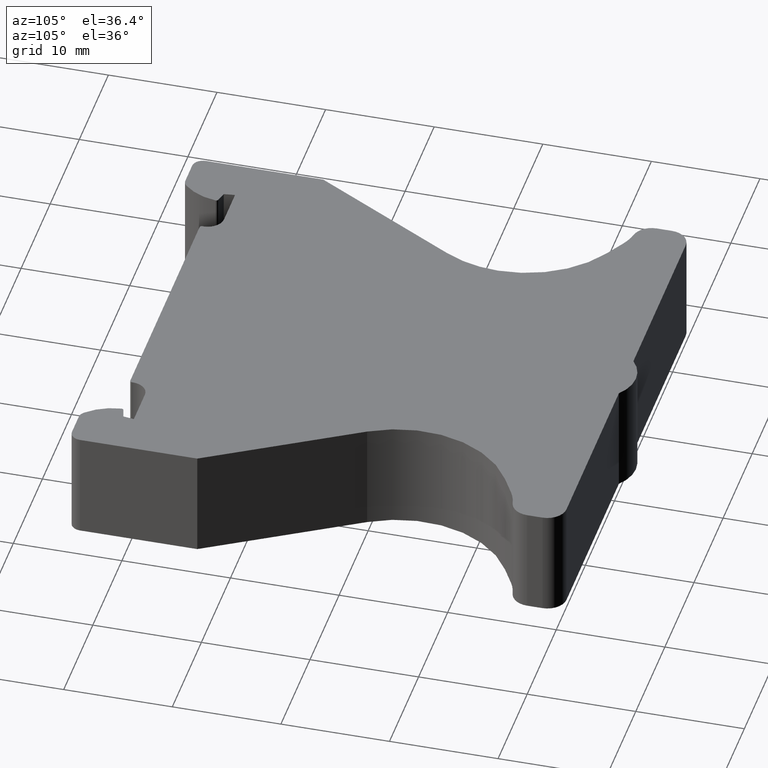
[diagram: clean part render]
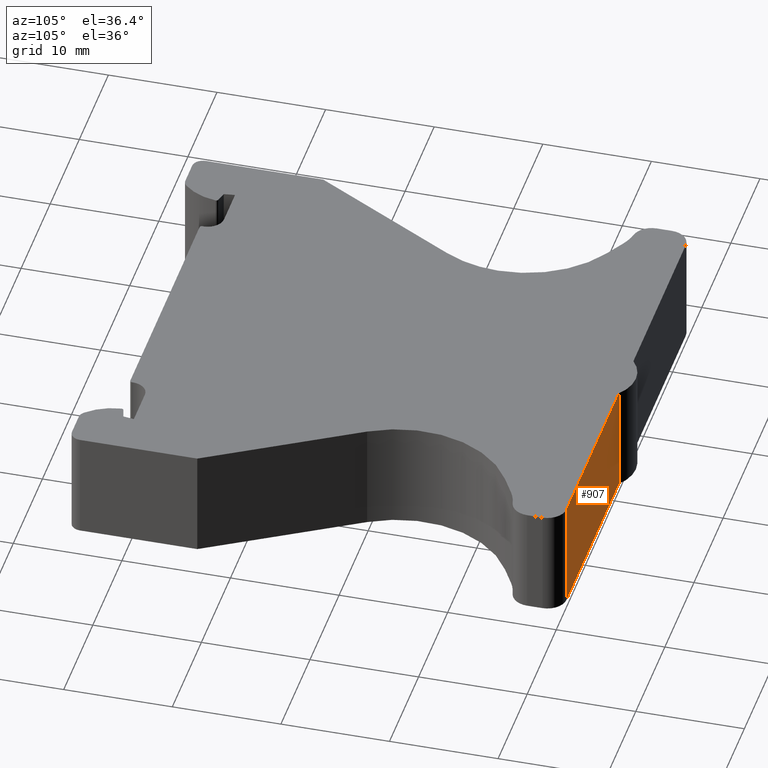
[diagram: same view with one face highlighted and labeled with its STEP entity id]
A machine part, auxiliary view. The second image highlights one B-rep face of the part: STEP entity #907.
In plain terms, the highlighted planar face has unit normal (0, -1, 0).
Its self-contained STEP definition (entity closure, byte-faithful):
#61 = CARTESIAN_POINT ( 'NONE',  ( 1796.719868390070100, 590.0665154542080000, 10.00000000000000000 ) ) ;
#118 = EDGE_LOOP ( 'NONE', ( #224, #205, #230, #231 ) ) ;
#205 = ORIENTED_EDGE ( 'NONE', *, *, #945, .T. ) ;
#224 = ORIENTED_EDGE ( 'NONE', *, *, #973, .T. ) ;
#230 = ORIENTED_EDGE ( 'NONE', *, *, #974, .F. ) ;
#231 = ORIENTED_EDGE ( 'NONE', *, *, #1000, .T. ) ;
#394 = VERTEX_POINT ( 'NONE', #546 ) ;
#409 = VERTEX_POINT ( 'NONE', #526 ) ;
#412 = VERTEX_POINT ( 'NONE', #516 ) ;
#497 = VERTEX_POINT ( 'NONE', #61 ) ;
#516 = CARTESIAN_POINT ( 'NONE',  ( 1796.719868390070100, 590.0665154542080000, 0.0000000000000000000 ) ) ;
#526 = CARTESIAN_POINT ( 'NONE',  ( 1778.711855548960800, 590.0665154542080000, 10.00000000000000000 ) ) ;
#546 = CARTESIAN_POINT ( 'NONE',  ( 1778.711855548960800, 590.0665154542080000, 0.0000000000000000000 ) ) ;
#614 = LINE ( 'NONE', #619, #1170 ) ;
#619 = CARTESIAN_POINT ( 'NONE',  ( 1794.469868390069900, 590.0665154542080000, 0.0000000000000000000 ) ) ;
#662 = LINE ( 'NONE', #665, #1159 ) ;
#665 = CARTESIAN_POINT ( 'NONE',  ( 1794.469868390069900, 590.0665154542080000, 10.00000000000000000 ) ) ;
#686 = DIRECTION ( 'NONE',  ( -1.000000000000000000, 0.0000000000000000000, 0.0000000000000000000 ) ) ;
#688 = DIRECTION ( 'NONE',  ( -1.000000000000000000, 0.0000000000000000000, 0.0000000000000000000 ) ) ;
#740 = DIRECTION ( 'NONE',  ( 0.0000000000000000000, 0.0000000000000000000, -1.000000000000000000 ) ) ;
#762 = CARTESIAN_POINT ( 'NONE',  ( 1796.719868390070100, 590.0665154542080000, 10.00000000000000000 ) ) ;
#780 = LINE ( 'NONE', #762, #1137 ) ;
#907 = ADVANCED_FACE ( 'NONE', ( #1447 ), #1434, .F. ) ;
#945 = EDGE_CURVE ( 'NONE', #394, #409, #1579, .T. ) ;
#973 = EDGE_CURVE ( 'NONE', #412, #394, #614, .T. ) ;
#974 = EDGE_CURVE ( 'NONE', #497, #409, #662, .T. ) ;
#1000 = EDGE_CURVE ( 'NONE', #497, #412, #780, .T. ) ;
#1033 = AXIS2_PLACEMENT_3D ( 'NONE', #1405, #1436, #1430 ) ;
#1094 = VECTOR ( 'NONE', #1576, 1000.000000000000000 ) ;
#1137 = VECTOR ( 'NONE', #740, 1000.000000000000000 ) ;
#1159 = VECTOR ( 'NONE', #688, 1000.000000000000000 ) ;
#1170 = VECTOR ( 'NONE', #686, 1000.000000000000000 ) ;
#1405 = CARTESIAN_POINT ( 'NONE',  ( 1794.469868390069900, 590.0665154542080000, 10.00000000000000000 ) ) ;
#1430 = DIRECTION ( 'NONE',  ( 0.0000000000000000000, 0.0000000000000000000, -1.000000000000000000 ) ) ;
#1434 = PLANE ( 'NONE',  #1033 ) ;
#1436 = DIRECTION ( 'NONE',  ( 0.0000000000000000000, -1.000000000000000000, 0.0000000000000000000 ) ) ;
#1447 = FACE_OUTER_BOUND ( 'NONE', #118, .T. ) ;
#1576 = DIRECTION ( 'NONE',  ( 0.0000000000000000000, 0.0000000000000000000, 1.000000000000000000 ) ) ;
#1579 = LINE ( 'NONE', #1583, #1094 ) ;
#1583 = CARTESIAN_POINT ( 'NONE',  ( 1778.711855548960800, 590.0665154542080000, -64.28605612317396400 ) ) ;